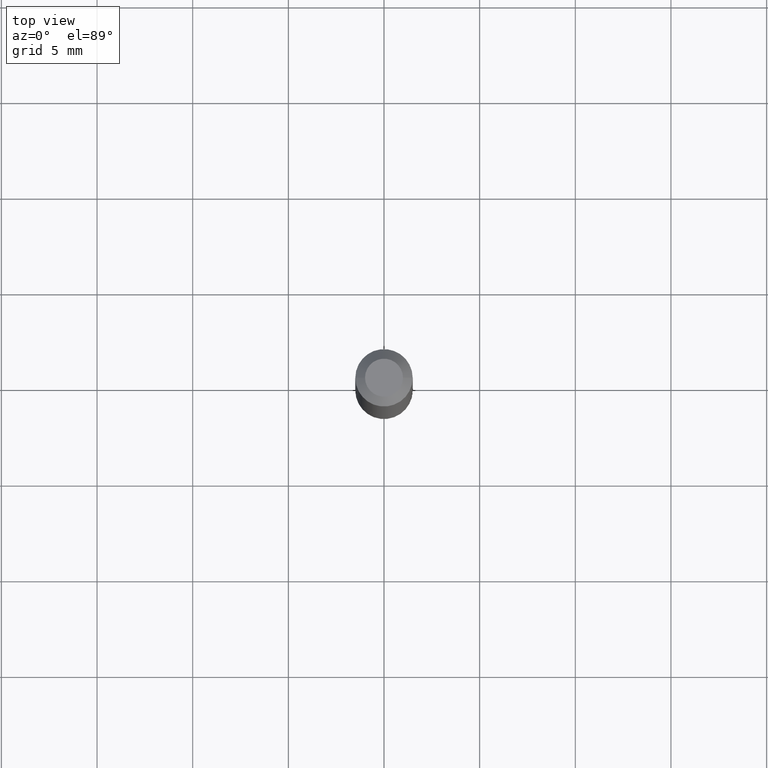
[diagram: clean part render]
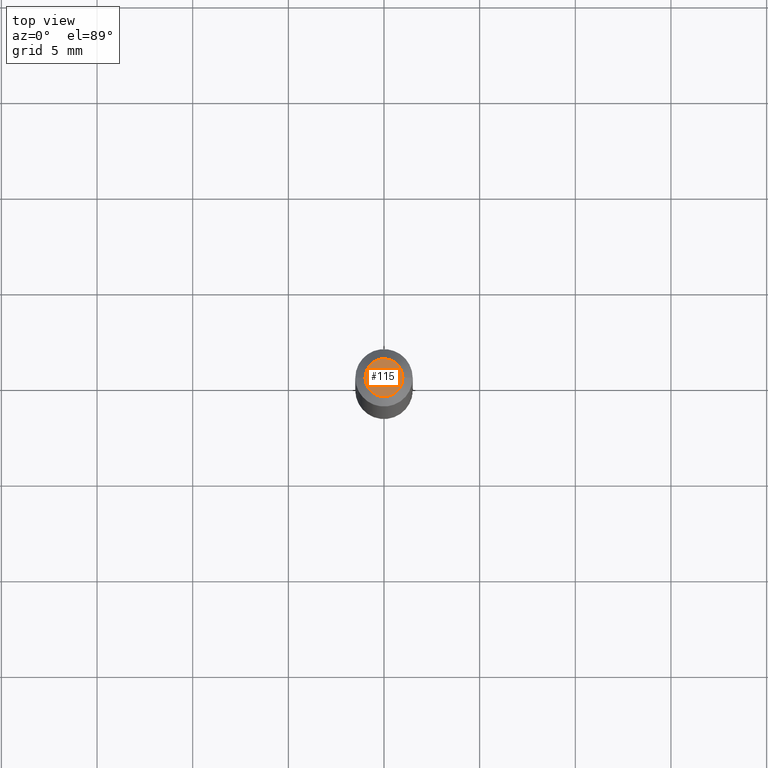
[diagram: same view with one face highlighted and labeled with its STEP entity id]
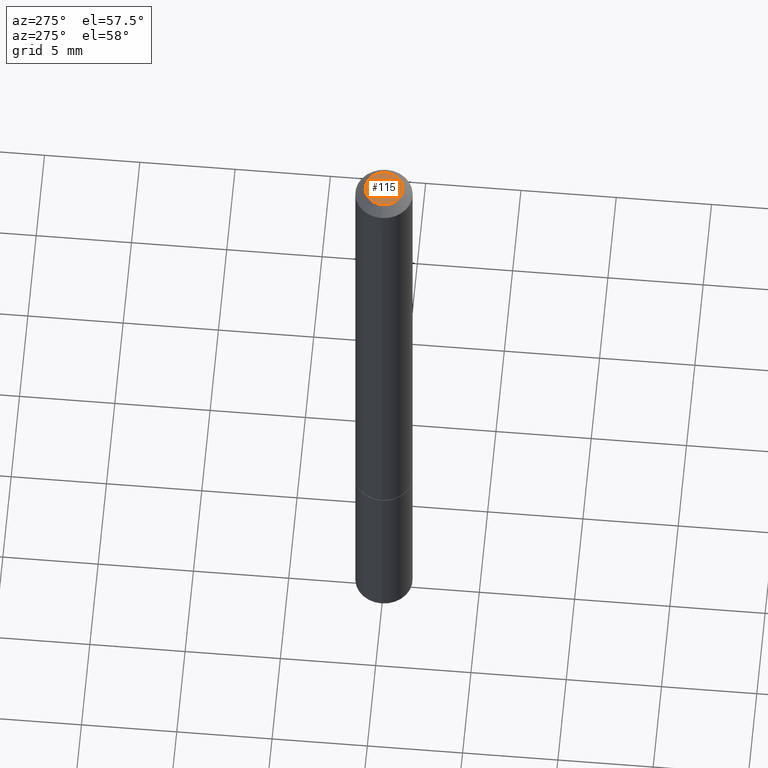
[diagram: same view with one face highlighted and labeled with its STEP entity id]
A machine part, top view. The second image highlights one B-rep face of the part: STEP entity #115.
A second angle (auxiliary view) of the same face is appended — the face is thin or edge-on in the first view.
In plain terms, the highlighted planar face has unit normal (0, -0, -1).
Its self-contained STEP definition (entity closure, byte-faithful):
#5 = EDGE_CURVE ( 'NONE', #43, #33, #353, .T. ) ;
#30 = EDGE_CURVE ( 'NONE', #33, #43, #150, .T. ) ;
#33 = VERTEX_POINT ( 'NONE', #153 ) ;
#43 = VERTEX_POINT ( 'NONE', #53 ) ;
#46 = DIRECTION ( 'NONE',  ( 1.000000000000000000, -6.982962677686265922E-15, 4.873707401586872212E-29 ) ) ;
#53 = CARTESIAN_POINT ( 'NONE',  ( 0.03904999999999992505, -3.714222401791245450E-16, -3.414809992080104074E-17 ) ) ;
#78 = DIRECTION ( 'NONE',  ( -2.445468806185136597E-29, 3.491481338843145583E-15, 1.000000000000000000 ) ) ;
#86 = FACE_OUTER_BOUND ( 'NONE', #100, .T. ) ;
#100 = EDGE_LOOP ( 'NONE', ( #200, #135 ) ) ;
#105 = CARTESIAN_POINT ( 'NONE',  ( 2.726846925636481266E-16, 0.03904999999999992505, -1.534163962422261891E-16 ) ) ;
#115 = ADVANCED_FACE ( 'NONE', ( #86 ), #214, .F. ) ;
#135 = ORIENTED_EDGE ( 'NONE', *, *, #5, .T. ) ;
#143 = AXIS2_PLACEMENT_3D ( 'NONE', #173, #78, #46 ) ;
#147 = CARTESIAN_POINT ( 'NONE',  ( 8.350811314681758556E-46, -1.192274536304357760E-31, -3.414809992080329023E-17 ) ) ;
#150 = CIRCLE ( 'NONE', #246, 0.03904999999999992505 ) ;
#153 = CARTESIAN_POINT ( 'NONE',  ( -0.03904999999999992505, 3.075995059520790361E-16, -3.414809992080532401E-17 ) ) ;
#173 = CARTESIAN_POINT ( 'NONE',  ( 8.350811314681758556E-46, -1.192274536304357760E-31, -3.414809992080329023E-17 ) ) ;
#177 = DIRECTION ( 'NONE',  ( 1.000000000000000000, -6.982962677686265922E-15, 4.873707401586872212E-29 ) ) ;
#199 = AXIS2_PLACEMENT_3D ( 'NONE', #105, #249, #321 ) ;
#200 = ORIENTED_EDGE ( 'NONE', *, *, #30, .T. ) ;
#204 = DIRECTION ( 'NONE',  ( -2.445468806185136597E-29, 3.491481338843145583E-15, 1.000000000000000000 ) ) ;
#214 = PLANE ( 'NONE',  #199 ) ;
#246 = AXIS2_PLACEMENT_3D ( 'NONE', #147, #204, #177 ) ;
#249 = DIRECTION ( 'NONE',  ( 2.438088387897960049E-29, -3.491481338843145188E-15, -1.000000000000000000 ) ) ;
#321 = DIRECTION ( 'NONE',  ( -1.000000000000000000, 6.982962677686265922E-15, -4.876176775795935793E-29 ) ) ;
#353 = CIRCLE ( 'NONE', #143, 0.03904999999999992505 ) ;